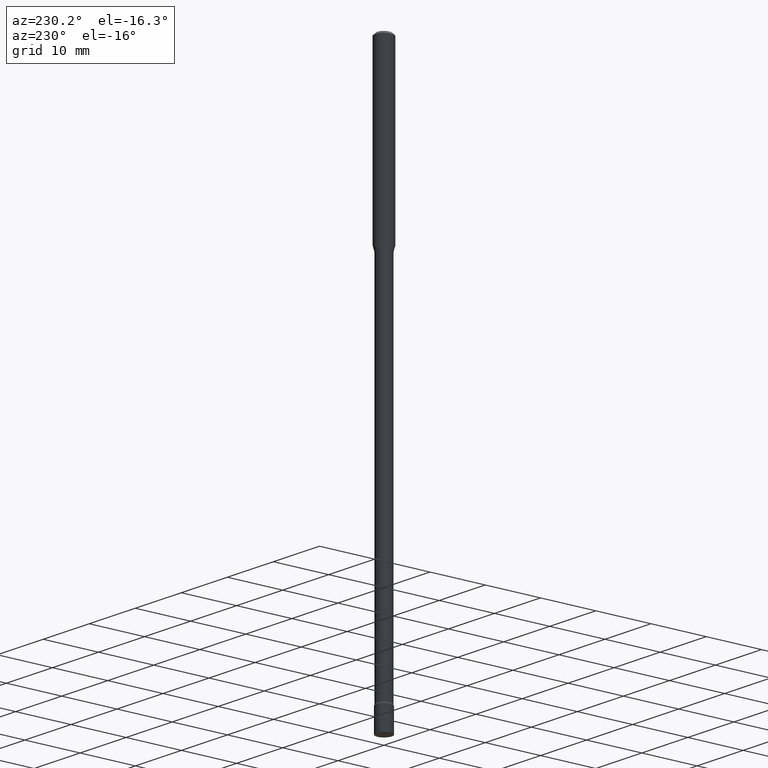
[diagram: clean part render]
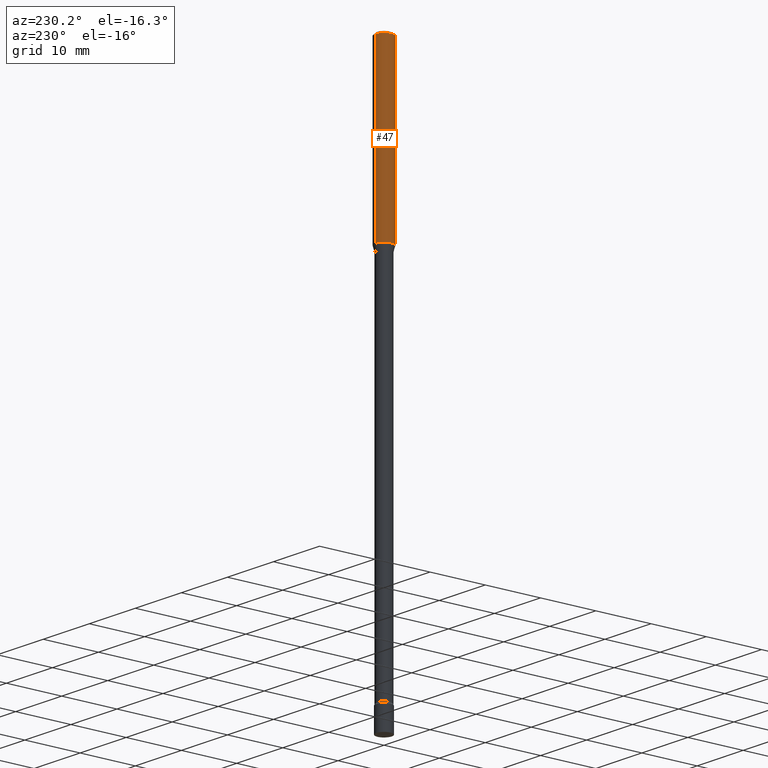
[diagram: same view with one face highlighted and labeled with its STEP entity id]
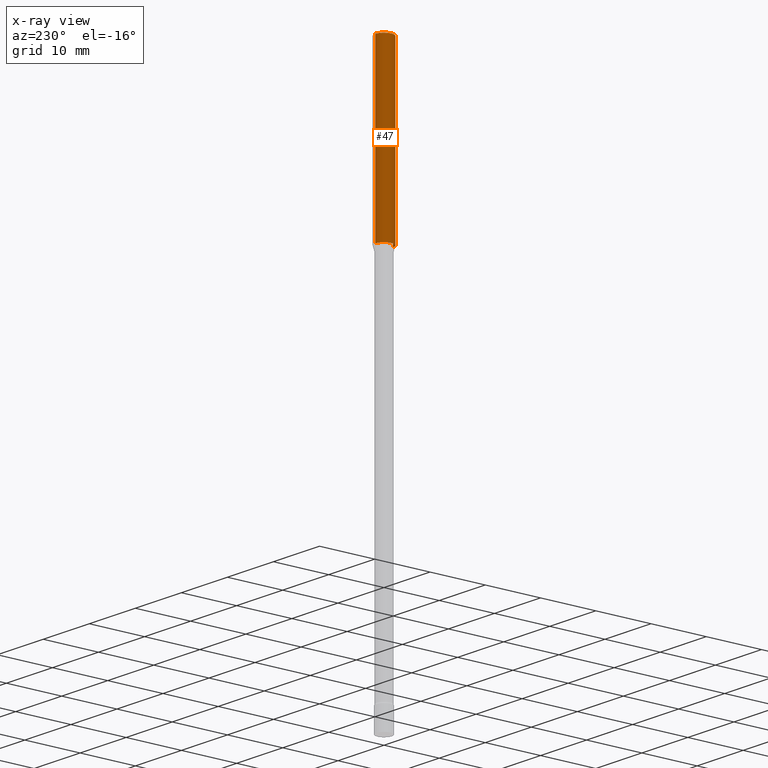
[diagram: x-ray of the same camera — body ghosted, the highlighted face saturated]
A machine part, auxiliary view. The second image highlights one B-rep face of the part: STEP entity #47.
The next image is the same camera in x-ray: the body ghosted, the highlighted face saturated — about 0% of this face is hidden behind the body in this view.
In plain terms, the highlighted cylindrical surface (edge-blend (fillet) strip) has radius 1.5875 mm, axis along (-0, 0, 1).
Its self-contained STEP definition (entity closure, byte-faithful):
#4 = DIRECTION ( 'NONE',  ( -6.982962677686265922E-15, -1.000000000000000000, 3.483106191921935554E-15 ) ) ;
#17 = VERTEX_POINT ( 'NONE', #68 ) ;
#33 = EDGE_CURVE ( 'NONE', #108, #214, #419, .T. ) ;
#40 = CARTESIAN_POINT ( 'NONE',  ( -4.364351673553618899E-16, -0.06250000000000419109, -1.209693851278255794 ) ) ;
#44 = CARTESIAN_POINT ( 'NONE',  ( 4.440892098500625669E-16, 0.06250000000000000000, -2.182237092863631417E-16 ) ) ;
#47 = ADVANCED_FACE ( 'NONE', ( #252 ), #178, .T. ) ;
#60 = DIRECTION ( 'NONE',  ( -6.982962677686265922E-15, -1.000000000000000000, 3.491579348581810268E-15 ) ) ;
#61 = DIRECTION ( 'NONE',  ( -2.445400366350421990E-29, 3.491579348581810268E-15, 1.000000000000000000 ) ) ;
#65 = CARTESIAN_POINT ( 'NONE',  ( 4.440892098500922971E-16, 0.06249999999999580891, -1.209693851278256460 ) ) ;
#68 = CARTESIAN_POINT ( 'NONE',  ( 4.440892098500922971E-16, 0.06249999999999995143, -0.01500000000000024751 ) ) ;
#74 = EDGE_CURVE ( 'NONE', #483, #17, #183, .T. ) ;
#87 = EDGE_CURVE ( 'NONE', #17, #214, #395, .T. ) ;
#108 = VERTEX_POINT ( 'NONE', #40 ) ;
#138 = VECTOR ( 'NONE', #292, 39.37007874015748143 ) ;
#178 = CYLINDRICAL_SURFACE ( 'NONE', #331, 0.06250000000000000000 ) ;
#180 = CARTESIAN_POINT ( 'NONE',  ( 2.958185787087700201E-29, -4.223742069229554954E-15, -1.209693851278256238 ) ) ;
#183 = LINE ( 'NONE', #44, #404 ) ;
#186 = AXIS2_PLACEMENT_3D ( 'NONE', #180, #61, #216 ) ;
#198 = DIRECTION ( 'NONE',  ( -2.445400366350421990E-29, 3.491579348581810268E-15, 1.000000000000000000 ) ) ;
#214 = VERTEX_POINT ( 'NONE', #310 ) ;
#216 = DIRECTION ( 'NONE',  ( -6.982962677686265922E-15, -1.000000000000000000, 4.370956789862821150E-15 ) ) ;
#221 = CARTESIAN_POINT ( 'NONE',  ( -4.364351673553916201E-16, -0.06250000000000000000, 2.182237092863631417E-16 ) ) ;
#252 = FACE_OUTER_BOUND ( 'NONE', #259, .T. ) ;
#259 = EDGE_LOOP ( 'NONE', ( #266, #313, #493, #463 ) ) ;
#266 = ORIENTED_EDGE ( 'NONE', *, *, #74, .F. ) ;
#292 = DIRECTION ( 'NONE',  ( -2.445400366350422270E-29, 3.491579348581810268E-15, 1.000000000000000000 ) ) ;
#310 = CARTESIAN_POINT ( 'NONE',  ( -4.364351673553912750E-16, -0.06250000000000005551, -0.01499999999999981209 ) ) ;
#313 = ORIENTED_EDGE ( 'NONE', *, *, #496, .T. ) ;
#320 = DIRECTION ( 'NONE',  ( -2.445400366350422270E-29, 3.491579348581810268E-15, 1.000000000000000000 ) ) ;
#331 = AXIS2_PLACEMENT_3D ( 'NONE', #408, #337, #60 ) ;
#337 = DIRECTION ( 'NONE',  ( -2.445400366350421990E-29, 3.491579348581810268E-15, 1.000000000000000000 ) ) ;
#371 = CIRCLE ( 'NONE', #186, 0.06250000000000000000 ) ;
#395 = CIRCLE ( 'NONE', #430, 0.06250000000000000000 ) ;
#404 = VECTOR ( 'NONE', #320, 39.37007874015748143 ) ;
#408 = CARTESIAN_POINT ( 'NONE',  ( 0.000000000000000000, 0.000000000000000000, 0.000000000000000000 ) ) ;
#419 = LINE ( 'NONE', #221, #138 ) ;
#430 = AXIS2_PLACEMENT_3D ( 'NONE', #510, #198, #4 ) ;
#463 = ORIENTED_EDGE ( 'NONE', *, *, #87, .F. ) ;
#483 = VERTEX_POINT ( 'NONE', #65 ) ;
#493 = ORIENTED_EDGE ( 'NONE', *, *, #33, .T. ) ;
#496 = EDGE_CURVE ( 'NONE', #483, #108, #371, .T. ) ;
#510 = CARTESIAN_POINT ( 'NONE',  ( 3.668100549525640377E-31, -5.237369022872726347E-17, -0.01500000000000003067 ) ) ;